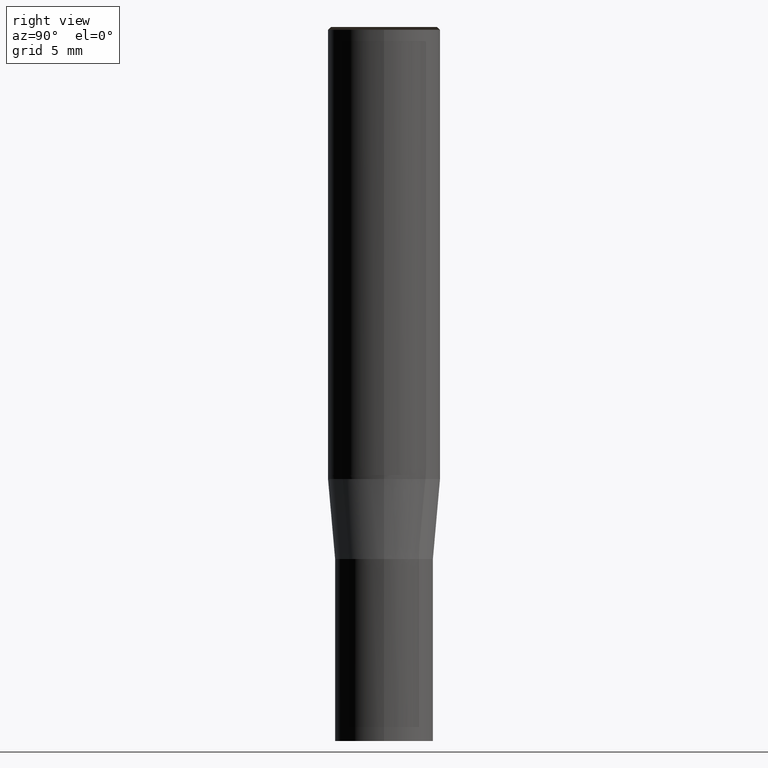
[diagram: clean part render]
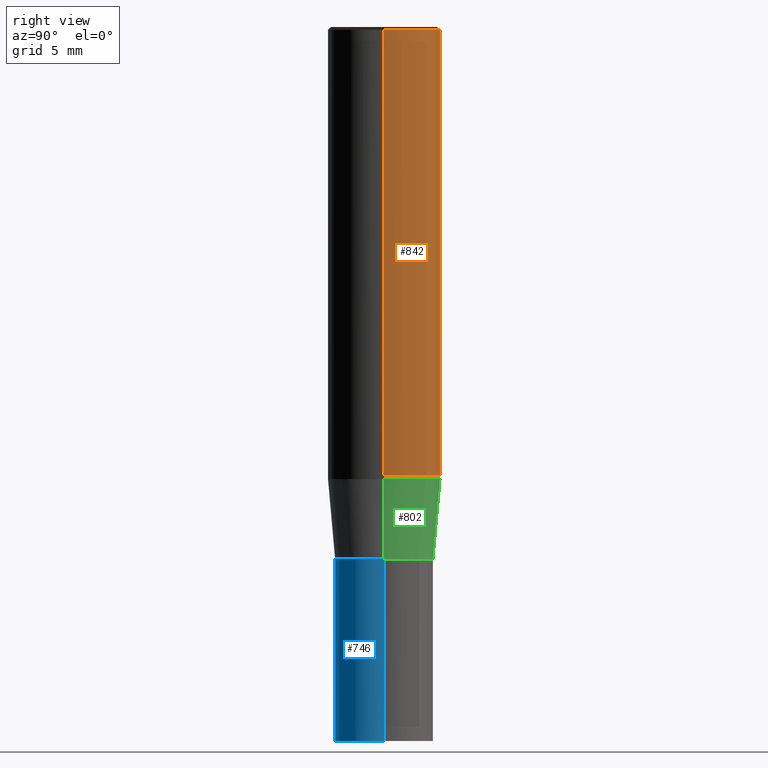
[diagram: same view with three faces highlighted in distinct colors, each labeled with its STEP entity id]
A machine part, right view with three faces highlighted in distinct colors.
Their STEP definitions:

[orange] entity #842 — the highlighted face is a freeform B-spline surface patch.
#625=CARTESIAN_POINT('',(4.0,0.0,0.0));
#626=CARTESIAN_POINT('',(4.0,4.0,0.0));
#627=CARTESIAN_POINT('',(0.0,4.0,0.0));
#628=CARTESIAN_POINT('',(-4.0,4.0,0.0));
#629=CARTESIAN_POINT('',(-4.0,0.0,0.0));
#630=CARTESIAN_POINT('',(4.0,0.0,31.8));
#631=CARTESIAN_POINT('',(4.0,4.0,31.8));
#632=CARTESIAN_POINT('',(0.0,4.0,31.8));
#633=CARTESIAN_POINT('',(-4.0,4.0,31.8));
#634=CARTESIAN_POINT('',(-4.0,0.0,31.8));
#823=(
BOUNDED_SURFACE()
B_SPLINE_SURFACE(1,2,(
(#625,#626,#627,#628,#629),
(#630,#631,#632,#633,#634)
), .UNSPECIFIED.,.F.,.F.,.F.)
B_SPLINE_SURFACE_WITH_KNOTS((2,2),(3,2,3),(
0.0,1.0),(
0.0,0.5,1.0), .UNSPECIFIED.)
GEOMETRIC_REPRESENTATION_ITEM()
RATIONAL_B_SPLINE_SURFACE(((1.0,0.707106781187,1.0,0.707106781187,1.0),
(1.0,0.707106781187,1.0,0.707106781187,1.0)
))
REPRESENTATION_ITEM('')
SURFACE()
);
#824=(
BOUNDED_CURVE()
B_SPLINE_CURVE(2,(#629,#628,#627,#626,#625),.UNSPECIFIED.,.F.,.F.)
B_SPLINE_CURVE_WITH_KNOTS((3,2,3),
(0.0,0.5,1.0),.UNSPECIFIED.)
CURVE()
GEOMETRIC_REPRESENTATION_ITEM()
RATIONAL_B_SPLINE_CURVE((1.0,0.707106781187,1.0,0.707106781187,1.0))
REPRESENTATION_ITEM('')
);
#825=(
BOUNDED_CURVE()
B_SPLINE_CURVE(1,(#625,#630),.UNSPECIFIED.,.F.,.F.)
B_SPLINE_CURVE_WITH_KNOTS((2,2),
(0.0,1.0),.UNSPECIFIED.)
CURVE()
GEOMETRIC_REPRESENTATION_ITEM()
RATIONAL_B_SPLINE_CURVE((1.0,1.0))
REPRESENTATION_ITEM('')
);
#826=(
BOUNDED_CURVE()
B_SPLINE_CURVE(2,(#630,#631,#632,#633,#634),.UNSPECIFIED.,.F.,.F.)
B_SPLINE_CURVE_WITH_KNOTS((3,2,3),
(0.0,0.5,1.0),.UNSPECIFIED.)
CURVE()
GEOMETRIC_REPRESENTATION_ITEM()
RATIONAL_B_SPLINE_CURVE((1.0,0.707106781187,1.0,0.707106781187,1.0))
REPRESENTATION_ITEM('')
);
#827=(
BOUNDED_CURVE()
B_SPLINE_CURVE(1,(#634,#629),.UNSPECIFIED.,.F.,.F.)
B_SPLINE_CURVE_WITH_KNOTS((2,2),
(0.0,1.0),.UNSPECIFIED.)
CURVE()
GEOMETRIC_REPRESENTATION_ITEM()
RATIONAL_B_SPLINE_CURVE((1.0,1.0))
REPRESENTATION_ITEM('')
);
#828=VERTEX_POINT('',#625);
#829=VERTEX_POINT('',#629);
#830=VERTEX_POINT('',#630);
#831=VERTEX_POINT('',#634);
#832=EDGE_CURVE('',#829,#828,#824,.T.);
#833=EDGE_CURVE('',#828,#830,#825,.T.);
#834=EDGE_CURVE('',#830,#831,#826,.T.);
#835=EDGE_CURVE('',#831,#829,#827,.T.);
#836=ORIENTED_EDGE('',*,*,#832,.T.);
#837=ORIENTED_EDGE('',*,*,#833,.T.);
#838=ORIENTED_EDGE('',*,*,#834,.T.);
#839=ORIENTED_EDGE('',*,*,#835,.T.);
#840=EDGE_LOOP('',(#836,#837,#838,#839));
#841=FACE_OUTER_BOUND('',#840,.T.);
#842=ADVANCED_FACE('',(#841),#823,.T.);

[blue] entity #746 — the highlighted face is a freeform B-spline surface patch.
#109=CARTESIAN_POINT('',(0.0,-3.5,-19.0));
#604=CARTESIAN_POINT('',(3.5,0.0,-19.0));
#608=CARTESIAN_POINT('',(-3.5,0.0,-19.0));
#609=CARTESIAN_POINT('',(3.5,0.0,-6.0));
#613=CARTESIAN_POINT('',(-3.5,0.0,-6.0));
#615=CARTESIAN_POINT('',(-3.5,-3.5,-19.0));
#616=CARTESIAN_POINT('',(3.5,-3.5,-19.0));
#617=CARTESIAN_POINT('',(-3.5,-3.5,-6.0));
#618=CARTESIAN_POINT('',(0.0,-3.5,-6.0));
#619=CARTESIAN_POINT('',(3.5,-3.5,-6.0));
#727=(
BOUNDED_SURFACE()
B_SPLINE_SURFACE(1,2,(
(#608,#615,#109,#616,#604),
(#613,#617,#618,#619,#609)
), .UNSPECIFIED.,.F.,.F.,.F.)
B_SPLINE_SURFACE_WITH_KNOTS((2,2),(3,2,3),(
0.0,1.0),(
0.0,0.5,1.0), .UNSPECIFIED.)
GEOMETRIC_REPRESENTATION_ITEM()
RATIONAL_B_SPLINE_SURFACE(((1.0,0.707106781187,1.0,0.707106781187,1.0),
(1.0,0.707106781187,1.0,0.707106781187,1.0)
))
REPRESENTATION_ITEM('')
SURFACE()
);
#728=(
BOUNDED_CURVE()
B_SPLINE_CURVE(2,(#604,#616,#109,#615,#608),.UNSPECIFIED.,.F.,.F.)
B_SPLINE_CURVE_WITH_KNOTS((3,2,3),
(0.0,0.5,1.0),.UNSPECIFIED.)
CURVE()
GEOMETRIC_REPRESENTATION_ITEM()
RATIONAL_B_SPLINE_CURVE((1.0,0.707106781187,1.0,0.707106781187,1.0))
REPRESENTATION_ITEM('')
);
#729=(
BOUNDED_CURVE()
B_SPLINE_CURVE(1,(#608,#613),.UNSPECIFIED.,.F.,.F.)
B_SPLINE_CURVE_WITH_KNOTS((2,2),
(0.0,1.0),.UNSPECIFIED.)
CURVE()
GEOMETRIC_REPRESENTATION_ITEM()
RATIONAL_B_SPLINE_CURVE((1.0,1.0))
REPRESENTATION_ITEM('')
);
#730=(
BOUNDED_CURVE()
B_SPLINE_CURVE(2,(#613,#617,#618,#619,#609),.UNSPECIFIED.,.F.,.F.)
B_SPLINE_CURVE_WITH_KNOTS((3,2,3),
(0.0,0.5,1.0),.UNSPECIFIED.)
CURVE()
GEOMETRIC_REPRESENTATION_ITEM()
RATIONAL_B_SPLINE_CURVE((1.0,0.707106781187,1.0,0.707106781187,1.0))
REPRESENTATION_ITEM('')
);
#731=(
BOUNDED_CURVE()
B_SPLINE_CURVE(1,(#609,#604),.UNSPECIFIED.,.F.,.F.)
B_SPLINE_CURVE_WITH_KNOTS((2,2),
(0.0,1.0),.UNSPECIFIED.)
CURVE()
GEOMETRIC_REPRESENTATION_ITEM()
RATIONAL_B_SPLINE_CURVE((1.0,1.0))
REPRESENTATION_ITEM('')
);
#732=VERTEX_POINT('',#604);
#733=VERTEX_POINT('',#608);
#734=VERTEX_POINT('',#609);
#735=VERTEX_POINT('',#613);
#736=EDGE_CURVE('',#732,#733,#728,.T.);
#737=EDGE_CURVE('',#733,#735,#729,.T.);
#738=EDGE_CURVE('',#735,#734,#730,.T.);
#739=EDGE_CURVE('',#734,#732,#731,.T.);
#740=ORIENTED_EDGE('',*,*,#736,.T.);
#741=ORIENTED_EDGE('',*,*,#737,.T.);
#742=ORIENTED_EDGE('',*,*,#738,.T.);
#743=ORIENTED_EDGE('',*,*,#739,.T.);
#744=EDGE_LOOP('',(#740,#741,#742,#743));
#745=FACE_OUTER_BOUND('',#744,.T.);
#746=ADVANCED_FACE('',(#745),#727,.T.);

[green] entity #802 — the highlighted face is a freeform B-spline surface patch.
#609=CARTESIAN_POINT('',(3.5,0.0,-6.0));
#610=CARTESIAN_POINT('',(3.5,3.5,-6.0));
#611=CARTESIAN_POINT('',(0.0,3.5,-6.0));
#612=CARTESIAN_POINT('',(-3.5,3.5,-6.0));
#613=CARTESIAN_POINT('',(-3.5,0.0,-6.0));
#620=CARTESIAN_POINT('',(4.0,0.0,-0.284973848619));
#621=CARTESIAN_POINT('',(4.0,4.0,-0.284973848619));
#622=CARTESIAN_POINT('',(0.0,4.0,-0.284973848619));
#623=CARTESIAN_POINT('',(-4.0,4.0,-0.284973848619));
#624=CARTESIAN_POINT('',(-4.0,0.0,-0.284973848619));
#783=(
BOUNDED_SURFACE()
B_SPLINE_SURFACE(1,2,(
(#609,#610,#611,#612,#613),
(#620,#621,#622,#623,#624)
), .UNSPECIFIED.,.F.,.F.,.F.)
B_SPLINE_SURFACE_WITH_KNOTS((2,2),(3,2,3),(
0.0,1.0),(
0.0,0.5,1.0), .UNSPECIFIED.)
GEOMETRIC_REPRESENTATION_ITEM()
RATIONAL_B_SPLINE_SURFACE(((1.0,0.707106781187,1.0,0.707106781187,1.0),
(1.0,0.707106781187,1.0,0.707106781187,1.0)
))
REPRESENTATION_ITEM('')
SURFACE()
);
#784=(
BOUNDED_CURVE()
B_SPLINE_CURVE(2,(#613,#612,#611,#610,#609),.UNSPECIFIED.,.F.,.F.)
B_SPLINE_CURVE_WITH_KNOTS((3,2,3),
(0.0,0.5,1.0),.UNSPECIFIED.)
CURVE()
GEOMETRIC_REPRESENTATION_ITEM()
RATIONAL_B_SPLINE_CURVE((1.0,0.707106781187,1.0,0.707106781187,1.0))
REPRESENTATION_ITEM('')
);
#785=(
BOUNDED_CURVE()
B_SPLINE_CURVE(1,(#609,#620),.UNSPECIFIED.,.F.,.F.)
B_SPLINE_CURVE_WITH_KNOTS((2,2),
(0.0,1.0),.UNSPECIFIED.)
CURVE()
GEOMETRIC_REPRESENTATION_ITEM()
RATIONAL_B_SPLINE_CURVE((1.0,1.0))
REPRESENTATION_ITEM('')
);
#786=(
BOUNDED_CURVE()
B_SPLINE_CURVE(2,(#620,#621,#622,#623,#624),.UNSPECIFIED.,.F.,.F.)
B_SPLINE_CURVE_WITH_KNOTS((3,2,3),
(0.0,0.5,1.0),.UNSPECIFIED.)
CURVE()
GEOMETRIC_REPRESENTATION_ITEM()
RATIONAL_B_SPLINE_CURVE((1.0,0.707106781187,1.0,0.707106781187,1.0))
REPRESENTATION_ITEM('')
);
#787=(
BOUNDED_CURVE()
B_SPLINE_CURVE(1,(#624,#613),.UNSPECIFIED.,.F.,.F.)
B_SPLINE_CURVE_WITH_KNOTS((2,2),
(0.0,1.0),.UNSPECIFIED.)
CURVE()
GEOMETRIC_REPRESENTATION_ITEM()
RATIONAL_B_SPLINE_CURVE((1.0,1.0))
REPRESENTATION_ITEM('')
);
#788=VERTEX_POINT('',#609);
#789=VERTEX_POINT('',#613);
#790=VERTEX_POINT('',#620);
#791=VERTEX_POINT('',#624);
#792=EDGE_CURVE('',#789,#788,#784,.T.);
#793=EDGE_CURVE('',#788,#790,#785,.T.);
#794=EDGE_CURVE('',#790,#791,#786,.T.);
#795=EDGE_CURVE('',#791,#789,#787,.T.);
#796=ORIENTED_EDGE('',*,*,#792,.T.);
#797=ORIENTED_EDGE('',*,*,#793,.T.);
#798=ORIENTED_EDGE('',*,*,#794,.T.);
#799=ORIENTED_EDGE('',*,*,#795,.T.);
#800=EDGE_LOOP('',(#796,#797,#798,#799));
#801=FACE_OUTER_BOUND('',#800,.T.);
#802=ADVANCED_FACE('',(#801),#783,.T.);